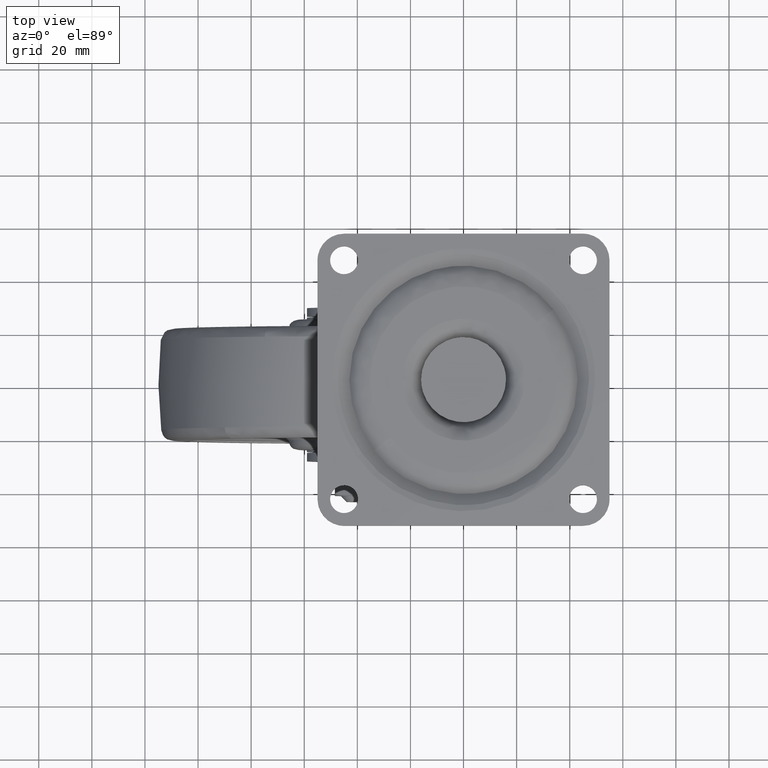
[diagram: clean part render]
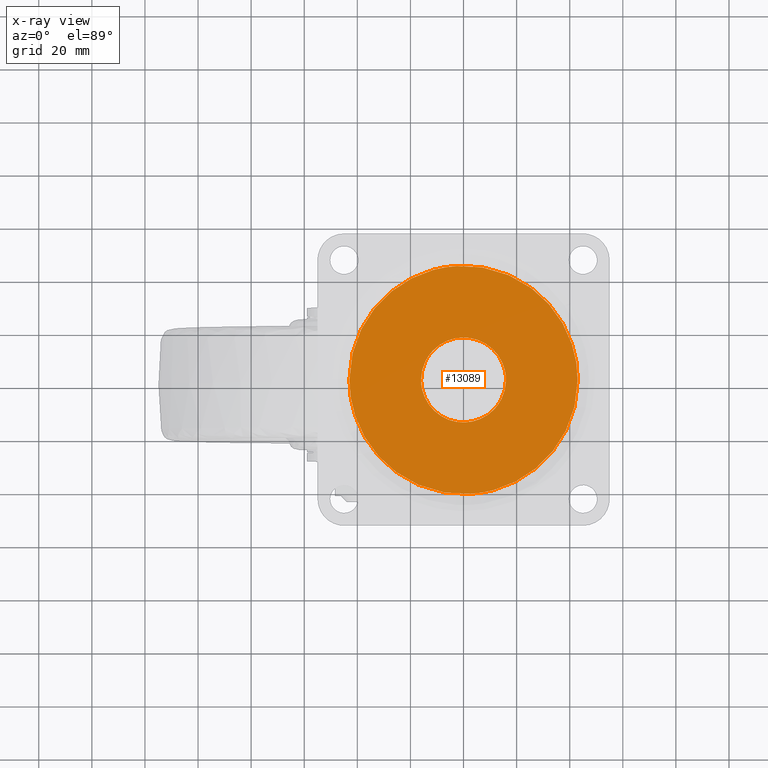
[diagram: x-ray — body ghosted, one internal face saturated and labeled with its STEP entity id]
A machine part, top view, then the same camera in x-ray: the body is ghosted and one INTERNAL B-rep face — a face not visible from any outside direction — is saturated and labeled: STEP entity #13089.
In plain terms, the highlighted face is a freeform B-spline surface patch.
Its self-contained STEP definition (entity closure, byte-faithful):
#12952=CARTESIAN_POINT('',(47.295699833315318,-47.294641654295219,-7.700000000000000));
#12953=CARTESIAN_POINT('',(-47.295702140015067,-47.294641654295233,-7.700000000000000));
#12954=CARTESIAN_POINT('',(47.295699833315318,47.294640116495387,-7.700000000000000));
#12955=CARTESIAN_POINT('',(-47.295702140015067,47.294640116495387,-7.700000000000000));
#12956=B_SPLINE_SURFACE_WITH_KNOTS('',1,1,((#12952,#12954),(#12953,#12955)),.UNSPECIFIED.,.F.,.F.,.U.,(2,2),(2,2),(0.0,94.591401973330392),(0.0,94.589281770790620),.UNSPECIFIED.);
#12957=CARTESIAN_POINT('',(2.625065731373806,-42.919797645206849,-7.700000000001117));
#12958=VERTEX_POINT('',#12957);
#12959=CARTESIAN_POINT('',(-43.0,0.0,-7.700000000000000));
#12960=VERTEX_POINT('',#12959);
#12961=CARTESIAN_POINT('',(2.625065731373807,-42.919797645206849,-7.700000000001117));
#12962=CARTESIAN_POINT('',(1.313758057428918,-42.999999999994692,-7.700000000001100));
#12963=CARTESIAN_POINT('',(-3.240544E-013,-42.999999999994778,-7.700000000001083));
#12964=CARTESIAN_POINT('',(-43.000000000000163,-42.999999999997463,-7.700000000000526));
#12965=CARTESIAN_POINT('',(-43.0,0.0,-7.700000000000000));
#12973=(BOUNDED_CURVE()B_SPLINE_CURVE(2,(#12961,#12962,#12963,#12964,#12965),.UNSPECIFIED.,.F.,.U.)B_SPLINE_CURVE_WITH_KNOTS((3,2,3),(0.739333048550453,0.750000000000000,1.0),.UNSPECIFIED.)CURVE()GEOMETRIC_REPRESENTATION_ITEM()RATIONAL_B_SPLINE_CURVE((0.976072226648783,0.987502889020061,1.0,0.707106781186548,1.0))REPRESENTATION_ITEM(''));
#12974=EDGE_CURVE('',#12958,#12960,#12973,.T.);
#12975=ORIENTED_EDGE('',*,*,#12974,.F.);
#12976=CARTESIAN_POINT('',(43.0,0.0,-7.700000000000000));
#12977=VERTEX_POINT('',#12976);
#12978=CARTESIAN_POINT('',(43.0,0.0,-7.700000000000000));
#12979=CARTESIAN_POINT('',(42.999999999999815,-40.450381148161433,-7.700000000000558));
#12980=CARTESIAN_POINT('',(2.625065731373807,-42.919797645206849,-7.700000000001117));
#12988=(BOUNDED_CURVE()B_SPLINE_CURVE(2,(#12978,#12979,#12980),.UNSPECIFIED.,.F.,.U.)B_SPLINE_CURVE_WITH_KNOTS((3,3),(0.500000000000000,0.739333048550453),.UNSPECIFIED.)CURVE()GEOMETRIC_REPRESENTATION_ITEM()RATIONAL_B_SPLINE_CURVE((1.0,0.719603892166487,0.976072226648783))REPRESENTATION_ITEM(''));
#12989=EDGE_CURVE('',#12977,#12958,#12988,.T.);
#12990=ORIENTED_EDGE('',*,*,#12989,.F.);
#12991=CARTESIAN_POINT('',(-2.625065731373806,42.919797645206849,-7.700000000001118));
#12992=VERTEX_POINT('',#12991);
#12993=CARTESIAN_POINT('',(-2.625065731373807,42.919797645206856,-7.700000000001118));
#12994=CARTESIAN_POINT('',(-1.313758057428922,42.999999999994692,-7.700000000001102));
#12995=CARTESIAN_POINT('',(3.167287E-013,42.999999999994778,-7.700000000001086));
#12996=CARTESIAN_POINT('',(43.000000000000163,42.999999999997463,-7.700000000000527));
#12997=CARTESIAN_POINT('',(43.0,0.0,-7.700000000000000));
#13005=(BOUNDED_CURVE()B_SPLINE_CURVE(2,(#12993,#12994,#12995,#12996,#12997),.UNSPECIFIED.,.F.,.U.)B_SPLINE_CURVE_WITH_KNOTS((3,2,3),(0.239333048550453,0.250000000000000,0.500000000000000),.UNSPECIFIED.)CURVE()GEOMETRIC_REPRESENTATION_ITEM()RATIONAL_B_SPLINE_CURVE((0.976072226648783,0.987502889020061,1.0,0.707106781186548,1.0))REPRESENTATION_ITEM(''));
#13006=EDGE_CURVE('',#12992,#12977,#13005,.T.);
#13007=ORIENTED_EDGE('',*,*,#13006,.F.);
#13008=CARTESIAN_POINT('',(-43.0,0.0,-7.700000000000000));
#13009=CARTESIAN_POINT('',(-42.999999999999837,40.450381148161455,-7.700000000000561));
#13010=CARTESIAN_POINT('',(-2.625065731373807,42.919797645206856,-7.700000000001118));
#13018=(BOUNDED_CURVE()B_SPLINE_CURVE(2,(#13008,#13009,#13010),.UNSPECIFIED.,.F.,.U.)B_SPLINE_CURVE_WITH_KNOTS((3,3),(0.0,0.239333048550453),.UNSPECIFIED.)CURVE()GEOMETRIC_REPRESENTATION_ITEM()RATIONAL_B_SPLINE_CURVE((1.0,0.719603892166486,0.976072226648783))REPRESENTATION_ITEM(''));
#13019=EDGE_CURVE('',#12960,#12992,#13018,.T.);
#13020=ORIENTED_EDGE('',*,*,#13019,.F.);
#13021=EDGE_LOOP('',(#12975,#12990,#13007,#13020));
#13022=FACE_OUTER_BOUND('',#13021,.T.);
#13023=CARTESIAN_POINT('',(16.0,0.0,-7.700000000000000));
#13024=VERTEX_POINT('',#13023);
#13025=CARTESIAN_POINT('',(11.605990829749111,-11.013672269492030,-7.700000000000001));
#13026=VERTEX_POINT('',#13025);
#13027=CARTESIAN_POINT('',(16.0,0.0,-7.700000000000000));
#13028=CARTESIAN_POINT('',(16.0,-6.383351983221476,-7.700000000000000));
#13029=CARTESIAN_POINT('',(11.605990829749153,-11.013672269492071,-7.700000000000000));
#13037=(BOUNDED_CURVE()B_SPLINE_CURVE(2,(#13027,#13028,#13029),.UNSPECIFIED.,.F.,.U.)B_SPLINE_CURVE_WITH_KNOTS((3,3),(0.500000000000000,0.621049514415224),.UNSPECIFIED.)CURVE()GEOMETRIC_REPRESENTATION_ITEM()RATIONAL_B_SPLINE_CURVE((1.0,0.858181672348479,0.853699662276123))REPRESENTATION_ITEM(''));
#13038=EDGE_CURVE('',#13024,#13026,#13037,.T.);
#13039=ORIENTED_EDGE('',*,*,#13038,.T.);
#13040=CARTESIAN_POINT('',(-16.0,0.0,-7.700000000000000));
#13041=VERTEX_POINT('',#13040);
#13042=CARTESIAN_POINT('',(11.605990829749111,-11.013672269492034,-7.700000000000001));
#13043=CARTESIAN_POINT('',(6.874143264324055,-15.999999999999998,-7.700000000000001));
#13044=CARTESIAN_POINT('',(0.0,-16.0,-7.700000000000000));
#13045=CARTESIAN_POINT('',(-15.999999999999998,-15.999999999999998,-7.700000000000000));
#13046=CARTESIAN_POINT('',(-16.0,0.0,-7.700000000000000));
#13054=(BOUNDED_CURVE()B_SPLINE_CURVE(2,(#13042,#13043,#13044,#13045,#13046),.UNSPECIFIED.,.F.,.U.)B_SPLINE_CURVE_WITH_KNOTS((3,2,3),(0.621049514415224,0.750000000000000,1.0),.UNSPECIFIED.)CURVE()GEOMETRIC_REPRESENTATION_ITEM()RATIONAL_B_SPLINE_CURVE((0.853699662276123,0.848925108838069,1.0,0.707106781186548,1.0))REPRESENTATION_ITEM(''));
#13055=EDGE_CURVE('',#13026,#13041,#13054,.T.);
#13056=ORIENTED_EDGE('',*,*,#13055,.T.);
#13057=CARTESIAN_POINT('',(-11.605990829749111,11.013672269492030,-7.700000000000001));
#13058=VERTEX_POINT('',#13057);
#13059=CARTESIAN_POINT('',(-16.0,0.0,-7.700000000000000));
#13060=CARTESIAN_POINT('',(-16.0,6.383351983221477,-7.700000000000000));
#13061=CARTESIAN_POINT('',(-11.605990829749150,11.013672269492071,-7.699999999999999));
#13069=(BOUNDED_CURVE()B_SPLINE_CURVE(2,(#13059,#13060,#13061),.UNSPECIFIED.,.F.,.U.)B_SPLINE_CURVE_WITH_KNOTS((3,3),(0.0,0.121049514415224),.UNSPECIFIED.)CURVE()GEOMETRIC_REPRESENTATION_ITEM()RATIONAL_B_SPLINE_CURVE((1.0,0.858181672348479,0.853699662276124))REPRESENTATION_ITEM(''));
#13070=EDGE_CURVE('',#13041,#13058,#13069,.T.);
#13071=ORIENTED_EDGE('',*,*,#13070,.T.);
#13072=CARTESIAN_POINT('',(-11.605990829749111,11.013672269492032,-7.700000000000001));
#13073=CARTESIAN_POINT('',(-6.874143264324054,15.999999999999996,-7.700000000000000));
#13074=CARTESIAN_POINT('',(0.0,16.0,-7.700000000000000));
#13075=CARTESIAN_POINT('',(15.999999999999998,15.999999999999998,-7.700000000000000));
#13076=CARTESIAN_POINT('',(16.0,0.0,-7.700000000000000));
#13084=(BOUNDED_CURVE()B_SPLINE_CURVE(2,(#13072,#13073,#13074,#13075,#13076),.UNSPECIFIED.,.F.,.U.)B_SPLINE_CURVE_WITH_KNOTS((3,2,3),(0.121049514415224,0.250000000000000,0.500000000000000),.UNSPECIFIED.)CURVE()GEOMETRIC_REPRESENTATION_ITEM()RATIONAL_B_SPLINE_CURVE((0.853699662276124,0.848925108838069,1.0,0.707106781186548,1.0))REPRESENTATION_ITEM(''));
#13085=EDGE_CURVE('',#13058,#13024,#13084,.T.);
#13086=ORIENTED_EDGE('',*,*,#13085,.T.);
#13087=EDGE_LOOP('',(#13039,#13056,#13071,#13086));
#13088=FACE_BOUND('',#13087,.T.);
#13089=ADVANCED_FACE('',(#13022,#13088),#12956,.F.);